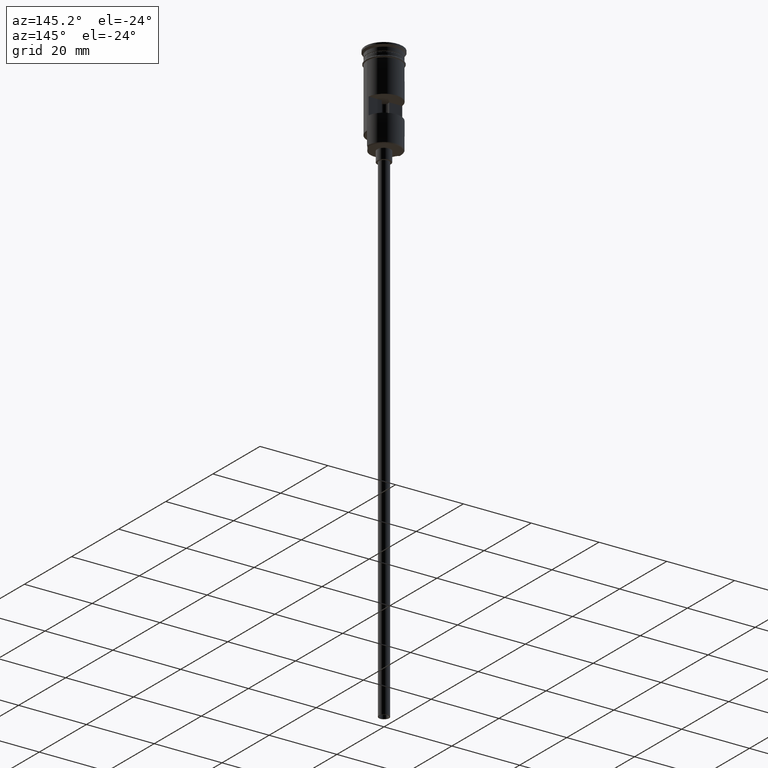
[diagram: clean part render]
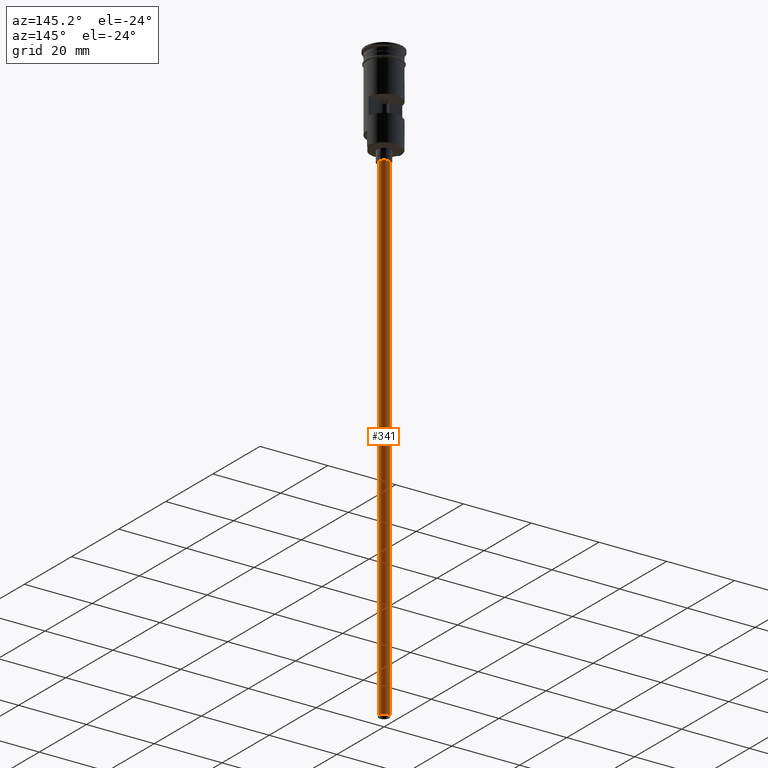
[diagram: same view with one face highlighted and labeled with its STEP entity id]
A machine part, auxiliary view. The second image highlights one B-rep face of the part: STEP entity #341.
In plain terms, the highlighted cylindrical surface (edge-blend (fillet) strip) has radius 1.5 mm, axis along (-0, -0, 1).
Its self-contained STEP definition (entity closure, byte-faithful):
#42 = CARTESIAN_POINT ( 'NONE',  ( 0.000000000000000000, 0.000000000000000000, -29.50000000000000000 ) ) ;
#119 = VECTOR ( 'NONE', #1258, 1000.000000000000000 ) ;
#156 = CARTESIAN_POINT ( 'NONE',  ( 1.500000000000000222, 0.000000000000000000, -176.5000000000000000 ) ) ;
#162 = DIRECTION ( 'NONE',  ( -0.000000000000000000, -0.000000000000000000, 1.000000000000000000 ) ) ;
#227 = DIRECTION ( 'NONE',  ( 1.000000000000000000, 0.000000000000000000, 0.000000000000000000 ) ) ;
#235 = FACE_OUTER_BOUND ( 'NONE', #616, .T. ) ;
#257 = CARTESIAN_POINT ( 'NONE',  ( 1.500000000000000222, 0.000000000000000000, -29.50000000000000000 ) ) ;
#263 = LINE ( 'NONE', #156, #119 ) ;
#341 = ADVANCED_FACE ( 'NONE', ( #235 ), #1221, .T. ) ;
#363 = VERTEX_POINT ( 'NONE', #257 ) ;
#365 = CARTESIAN_POINT ( 'NONE',  ( 0.000000000000000000, 0.000000000000000000, -176.5000000000000000 ) ) ;
#380 = ORIENTED_EDGE ( 'NONE', *, *, #640, .F. ) ;
#397 = VERTEX_POINT ( 'NONE', #1491 ) ;
#496 = EDGE_CURVE ( 'NONE', #704, #363, #263, .T. ) ;
#549 = VERTEX_POINT ( 'NONE', #644 ) ;
#554 = EDGE_CURVE ( 'NONE', #397, #549, #1275, .T. ) ;
#616 = EDGE_LOOP ( 'NONE', ( #380, #680, #997, #1176 ) ) ;
#636 = VECTOR ( 'NONE', #162, 1000.000000000000000 ) ;
#640 = EDGE_CURVE ( 'NONE', #397, #704, #1600, .T. ) ;
#644 = CARTESIAN_POINT ( 'NONE',  ( -1.500000000000000222, 1.836970198721030181E-16, -29.50000000000000000 ) ) ;
#654 = AXIS2_PLACEMENT_3D ( 'NONE', #365, #1245, #227 ) ;
#680 = ORIENTED_EDGE ( 'NONE', *, *, #554, .T. ) ;
#701 = DIRECTION ( 'NONE',  ( 0.000000000000000000, 0.000000000000000000, -1.000000000000000000 ) ) ;
#704 = VERTEX_POINT ( 'NONE', #1197 ) ;
#786 = DIRECTION ( 'NONE',  ( 0.000000000000000000, 0.000000000000000000, -1.000000000000000000 ) ) ;
#874 = CIRCLE ( 'NONE', #1088, 1.500000000000000222 ) ;
#915 = CARTESIAN_POINT ( 'NONE',  ( -1.500000000000000222, 1.836970198721030181E-16, -176.5000000000000000 ) ) ;
#927 = AXIS2_PLACEMENT_3D ( 'NONE', #1556, #701, #1059 ) ;
#943 = EDGE_CURVE ( 'NONE', #549, #363, #874, .T. ) ;
#997 = ORIENTED_EDGE ( 'NONE', *, *, #943, .T. ) ;
#1059 = DIRECTION ( 'NONE',  ( -1.000000000000000000, 0.000000000000000000, 0.000000000000000000 ) ) ;
#1088 = AXIS2_PLACEMENT_3D ( 'NONE', #42, #786, #1256 ) ;
#1176 = ORIENTED_EDGE ( 'NONE', *, *, #496, .F. ) ;
#1197 = CARTESIAN_POINT ( 'NONE',  ( 1.500000000000000222, 0.000000000000000000, -176.5000000000000000 ) ) ;
#1221 = CYLINDRICAL_SURFACE ( 'NONE', #654, 1.500000000000000222 ) ;
#1245 = DIRECTION ( 'NONE',  ( -0.000000000000000000, -0.000000000000000000, 1.000000000000000000 ) ) ;
#1256 = DIRECTION ( 'NONE',  ( -1.000000000000000000, 0.000000000000000000, 0.000000000000000000 ) ) ;
#1258 = DIRECTION ( 'NONE',  ( -0.000000000000000000, -0.000000000000000000, 1.000000000000000000 ) ) ;
#1275 = LINE ( 'NONE', #915, #636 ) ;
#1491 = CARTESIAN_POINT ( 'NONE',  ( -1.500000000000000222, 1.836970198721030181E-16, -176.5000000000000000 ) ) ;
#1556 = CARTESIAN_POINT ( 'NONE',  ( 0.000000000000000000, 0.000000000000000000, -176.5000000000000000 ) ) ;
#1600 = CIRCLE ( 'NONE', #927, 1.500000000000000222 ) ;